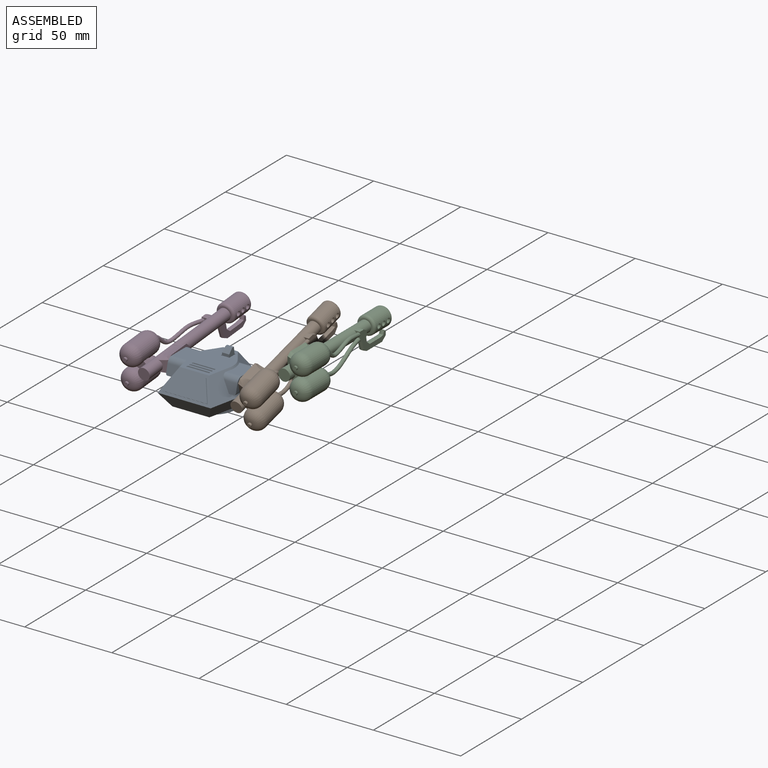
[diagram: assembled view]
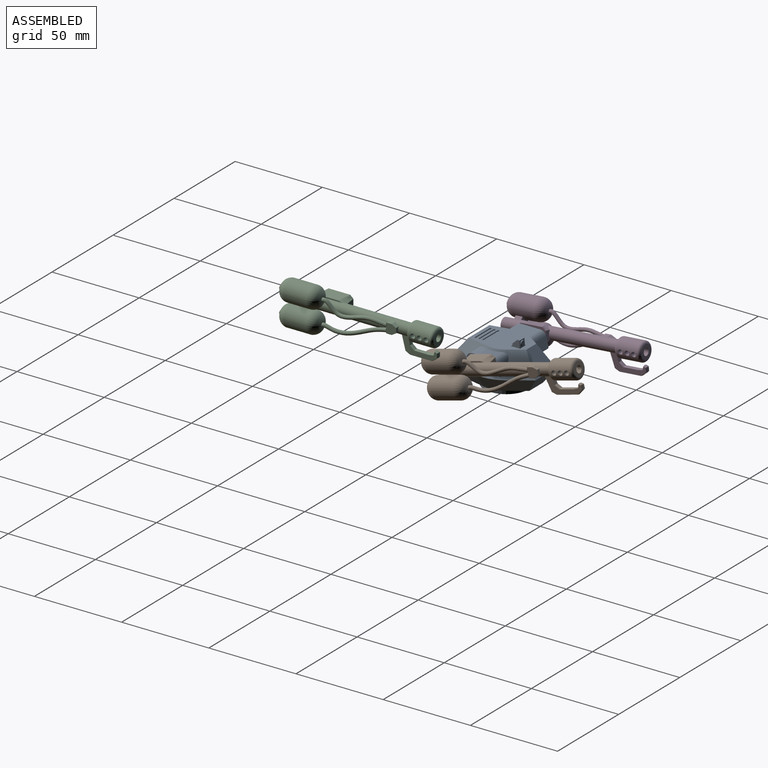
[diagram: assembled view, second angle]
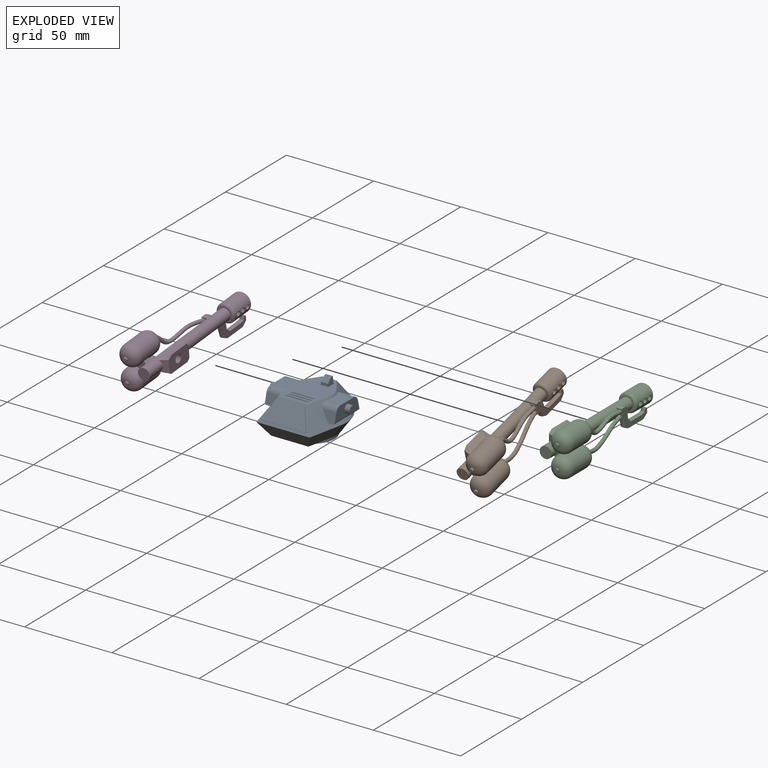
[diagram: exploded view]
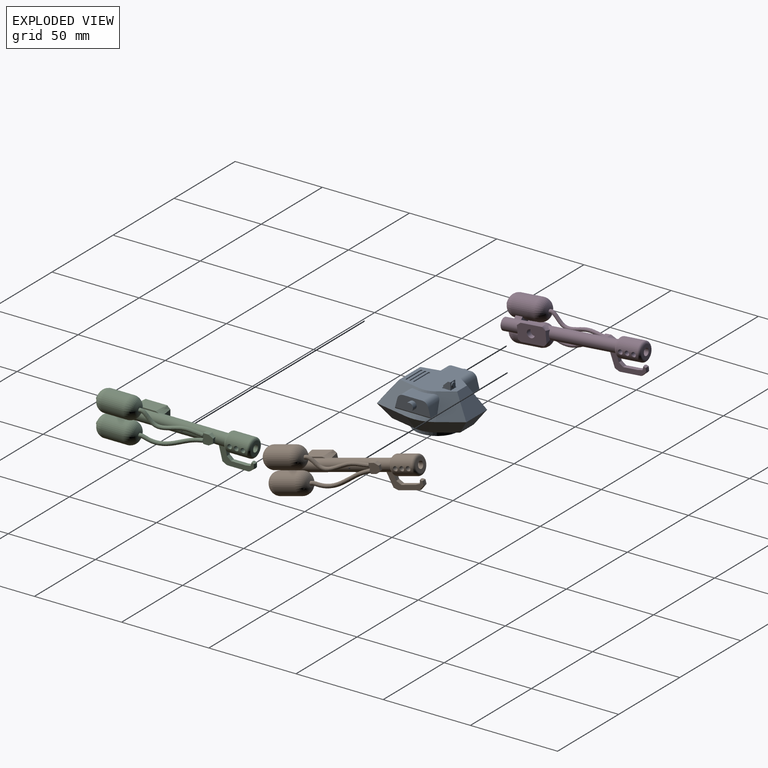
[diagram: exploded view, second angle]
ASSEMBLY  parts=3 mates=2
PART A: 76 faces, bbox 46x46.6x26.4 mm
  f0: plane 29.83x22.9mm, normal (0,0,1), area 490.3mm2, adj f4,f5,f7,f8,f9,f11,f21,f22
  f1: plane 4.95x4.87mm, normal (0,0,1), area 5.5mm2, adj f48,f49,f50,f51,f52,f53,f54,f55
  f2: cylinder r=12.75mm len=25.5mm, axis (0,0,-1), area 200.3mm2, adj f3,f20
  f3: plane 25.5x25.5mm, normal (0,0,-1), area 510.7mm2, adj f2
  f4: plane 16.46x12.5mm, normal (0.68,0.46,0.57), area 165.8mm2, adj f0,f10,f11,f12,f21,f27,f28,f32
  f5: plane 16.46x12.5mm, normal (-0.68,0.46,0.57), area 165.8mm2, adj f0,f6,f7,f14,f21,f33,f37,f38
  f6: cone r=19.85mm half-angle=35deg, axis (0,0,-1), area 47.5mm2, adj f5,f8,f15,f33
  f7: cone r=19.85mm half-angle=35deg, axis (0,0,-1), area 11.8mm2, adj f0,f5,f8,f34,f38
  f8: plane 21.56x12mm, normal (-0.8,-0.17,0.57), area 184.7mm2, adj f0,f6,f7,f16,f22,f33,f34,f35
  f9: plane 21.56x12mm, normal (0.8,-0.17,0.57), area 184.7mm2, adj f0,f10,f11,f18,f22,f27,f29,f30
  f10: cone r=19.85mm half-angle=35deg, axis (0,0,-1), area 47.5mm2, adj f4,f9,f19,f27
  f11: cone r=19.85mm half-angle=35deg, axis (0,0,-1), area 11.8mm2, adj f0,f4,f9,f28,f29
  f12: plane 14.91x11.03mm, normal (0.68,0.46,-0.57), area 124.8mm2, adj f4,f13,f19,f20
  f13: plane 17.03x8mm, normal (0,0.82,-0.57), area 137.5mm2, adj f12,f14,f20,f21
  f14: plane 14.91x11.03mm, normal (-0.68,0.46,-0.57), area 124.8mm2, adj f5,f13,f15,f20
  f15: cone r=14.25mm half-angle=35deg, axis (0,0,1), area 131.5mm2, adj f6,f14,f16,f20
  f16: plane 20.98x8.75mm, normal (-0.8,-0.17,-0.57), area 175.7mm2, adj f8,f15,f17,f20
  f17: plane 30.42x8mm, normal (0,-0.82,-0.57), area 252.8mm2, adj f16,f18,f20,f22
  f18: plane 20.98x8.75mm, normal (0.8,-0.17,-0.57), area 175.7mm2, adj f9,f17,f19,f20
  f19: cone r=14.25mm half-angle=35deg, axis (0,0,1), area 131.5mm2, adj f10,f12,f18,f20
  f20: plane 35.43x28.5mm, normal (0,0,-1), area 324.7mm2, adj f2,f12,f13,f14,f15,f16,f17,f18
  f21: plane 17.03x12mm, normal (0,0.82,0.57), area 184.6mm2, adj f0,f4,f5,f13
  f22: plane 30.42x12mm, normal (0,-0.82,0.57), area 109.4mm2, adj f0,f8,f9,f17,f43,f44,f45,f46
  f23: plane 4.5x4.5mm, normal (1,0,0), area 15.9mm2, adj f24
  f24: cylinder r=2.25mm len=4.5mm, axis (-1,0,0), area 42.4mm2, adj f23,f26
  f25: cylinder r=1mm len=20.73mm, axis (0,-1,0), area 32.3mm2, adj f26,f27,f31,f32
  f26: plane 20.2x7.37mm, normal (1,0,0), area 115.9mm2, adj f24,f25,f28,f29,f30,f31,f32
  f27: plane 20.73x4.25mm, normal (0,0,-1), area 38.7mm2, adj f4,f9,f10,f25,f31,f32
  f28: cylinder r=3.5mm len=9.84mm, axis (-1,0,0), area 44mm2, adj f4,f11,f26,f29,f32
  f29: plane 10.93x9.12mm, normal (0,0,1), area 89.8mm2, adj f9,f11,f26,f28,f30
  f30: cylinder r=3.5mm len=8.83mm, axis (-1,0,0), area 39mm2, adj f9,f26,f29,f31
  f31: plane 7.57x5.76mm, normal (0,-0.97,0.25), area 33.5mm2, adj f9,f25,f26,f27,f30
  f32: plane 9.1x5.76mm, normal (0,0.97,0.25), area 42.5mm2, adj f4,f25,f26,f27,f28
  f33: plane 20.73x4.25mm, normal (0,0,-1), area 38.7mm2, adj f5,f6,f8,f35,f37,f40
  f34: plane 10.93x9.12mm, normal (0,0,1), area 89.8mm2, adj f7,f8,f36,f38,f39
  f35: plane 7.57x5.76mm, normal (0,-0.97,0.25), area 33.5mm2, adj f8,f33,f36,f39,f40
  f36: cylinder r=3.5mm len=8.83mm, axis (-1,0,0), area 39mm2, adj f8,f34,f35,f39
  f37: plane 9.1x5.76mm, normal (0,0.97,0.25), area 42.5mm2, adj f5,f33,f38,f39,f40
  f38: cylinder r=3.5mm len=9.84mm, axis (-1,0,0), area 44mm2, adj f5,f7,f34,f37,f39
  f39: plane 20.2x7.37mm, normal (-1,0,0), area 115.9mm2, adj f34,f35,f36,f37,f38,f40,f41
  f40: cylinder r=1mm len=20.73mm, axis (0,-1,0), area 32.3mm2, adj f33,f35,f37,f39
  f41: cylinder r=2.25mm len=4.5mm, axis (1,0,0), area 42.4mm2, adj f39,f42
  f42: plane 4.5x4.5mm, normal (-1,0,0), area 15.9mm2, adj f41
  f43: plane 9.77x7.01mm, normal (0.91,0.24,0.35), area 5.1mm2, adj f22,f44,f46,f47
  f44: plane 14.89x0.33mm, normal (0,0.57,0.82), area 6mm2, adj f22,f43,f45,f47
  f45: plane 9.77x7.01mm, normal (-0.91,0.24,0.35), area 5.1mm2, adj f22,f44,f46,f47
  f46: plane 25.72x0.33mm, normal (0,-0.57,-0.82), area 10.3mm2, adj f22,f43,f45,f47
  f47: plane 25.72x9.54mm, normal (0,-0.82,0.57), area 236.5mm2, adj f43,f44,f45,f46
  f48: plane 4.95x0.4mm, normal (-1,0,0), area 2mm2, adj f0,f1,f49,f51
  f49: plane 4.87x0.4mm, normal (0,-1,0), area 1.9mm2, adj f0,f1,f48,f50
  f50: plane 4.95x0.4mm, normal (1,0,0), area 2mm2, adj f0,f1,f49,f51
  f51: plane 4.87x0.4mm, normal (0,1,0), area 1.9mm2, adj f0,f1,f48,f50
  f52: plane 4.35x4.25mm, normal (1,0,0.05), area 14.5mm2, adj f1,f53,f55,f56,f57
  f53: plane 4.27x4.25mm, normal (0,1,0.05), area 10.4mm2, adj f1,f52,f54,f56,f73
  f54: plane 4.35x4.25mm, normal (-1,0,0.05), area 14.5mm2, adj f1,f53,f55,f56,f57
  f55: plane 4.27x1.75mm, normal (0,-1,0.05), area 7.3mm2, adj f1,f52,f54,f57
  f56: plane 3.83x1.41mm, normal (0,0,1), area 5.4mm2, adj f52,f53,f54,f57
  f57: plane 4.09x2.63mm, normal (0,-0.69,0.73), area 14.4mm2, adj f52,f54,f55,f56
  f58: cone r=0.56mm half-angle=10deg, axis (0,0,1), area 0.8mm2, adj f0,f59,f61,f62
  f59: plane 12x0.5mm, normal (0,0.98,0.17), area 6.1mm2, adj f0,f58,f60,f62
  f60: cone r=0.56mm half-angle=10deg, axis (0,0,1), area 0.8mm2, adj f0,f59,f61,f62
  f61: plane 12x0.5mm, normal (0,-0.98,0.17), area 6.1mm2, adj f0,f58,f60,f62
  f62: plane 12.94x0.94mm, normal (0,0,1), area 12mm2, adj f58,f59,f60,f61
  f63: cone r=0.56mm half-angle=10deg, axis (0,0,1), area 0.8mm2, adj f0,f64,f66,f67
  f64: plane 12x0.5mm, normal (0,0.98,0.17), area 6.1mm2, adj f0,f63,f65,f67
  f65: cone r=0.56mm half-angle=10deg, axis (0,0,1), area 0.8mm2, adj f0,f64,f66,f67
  f66: plane 12x0.5mm, normal (0,-0.98,0.17), area 6.1mm2, adj f0,f63,f65,f67
  f67: plane 12.94x0.94mm, normal (0,0,1), area 12mm2, adj f63,f64,f65,f66
  f68: cone r=0.56mm half-angle=10deg, axis (0,0,1), area 0.8mm2, adj f0,f69,f71,f72
  f69: plane 12x0.5mm, normal (0,-0.98,0.17), area 6.1mm2, adj f0,f68,f70,f72
  f70: cone r=0.56mm half-angle=10deg, axis (0,0,1), area 0.8mm2, adj f0,f69,f71,f72
  f71: plane 12x0.5mm, normal (0,0.98,0.17), area 6.1mm2, adj f0,f68,f70,f72
  f72: plane 12.94x0.94mm, normal (0,0,1), area 12mm2, adj f68,f69,f70,f71
  f73: cylinder r=1.48mm len=2.97mm, axis (0,-1,-0.05), area 2.8mm2, adj f53,f75
  f74: plane 2.35x2.35mm, normal (0,1,0.05), area 4.4mm2, adj f75
  f75: torus R=1.18mm, axis (0,1,0.05), area 4.1mm2, adj f73,f74
PART B: 85 faces, bbox 21.2x85.4x26 mm
  f0: cylinder r=3.35mm len=66.5mm, axis (0,-1,0), area 1156.9mm2, adj f1,f10,f13,f16,f29,f30,f31,f32
  f1: plane 3.18x1.82mm, normal (0,-1,0), area 4.2mm2, adj f0,f2,f29,f83
  f2: plane 5.7x5.59mm, normal (1,0,0), area 28.2mm2, adj f1,f29,f30,f31,f32,f33,f34,f81
  f3: cylinder r=1.08mm len=2.17mm, axis (0,1,0), area 7.8mm2, adj f4,f8
  f4: plane 2.17x2.17mm, normal (0,-1,0), area 3.7mm2, adj f3
  f5: cylinder r=1.08mm len=2.17mm, axis (0,1,0), area 8.2mm2, adj f6,f84
  f6: torus R=1.08mm, axis (0,1,0), area 210.5mm2, adj f5,f7
  f7: cylinder r=6.08mm len=12.99mm, axis (0,1,0), area 475.8mm2, adj f6,f8,f9,f10,f55,f56
  f8: torus R=1.08mm, axis (0,1,0), area 210.5mm2, adj f3,f7
  f9: plane 4x1.14mm, normal (1,0,0), area 4.5mm2, adj f7,f52,f55,f56
  f10: plane 4x1.28mm, normal (-0.67,0,0.75), area 6.8mm2, adj f0,f7,f55,f56
  f11: cylinder r=1.99mm len=25mm, axis (0,1,0), area 247.2mm2, adj f12,f15,f19,f20,f21,f22,f23,f24
  f12: plane 3.43x0.99mm, normal (0,1,0), area 2.4mm2, adj f11,f25
  f13: plane 6.7x6.7mm, normal (0,-1,0), area 35.3mm2, adj f0
  f14: cylinder r=5.31mm len=12mm, axis (0,-1,0), area 367.7mm2, adj f17,f18,f19,f20,f21,f22,f23,f24
  f15: plane 7.63x7.63mm, normal (0,1,0), area 33.3mm2, adj f11,f18
  f16: plane 7.63x7.63mm, normal (0,-1,0), area 10.4mm2, adj f0,f17
  f17: torus R=3.81mm, axis (0,1,0), area 70.6mm2, adj f14,f16
  f18: torus R=3.81mm, axis (0,1,0), area 70.6mm2, adj f14,f15
  f19: cylinder r=1.31mm len=3.69mm, axis (1,0,0), area 30.5mm2, adj f11,f14
  f20: cylinder r=1.31mm len=3.69mm, axis (1,0,0), area 30.5mm2, adj f11,f14
  f21: cylinder r=1.31mm len=3.69mm, axis (1,0,0), area 30.5mm2, adj f11,f14
  f22: cylinder r=1.31mm len=3.69mm, axis (1,0,0), area 30.5mm2, adj f11,f14
  f23: cylinder r=1.31mm len=3.69mm, axis (1,0,0), area 30.5mm2, adj f11,f14
  f24: cylinder r=1.31mm len=3.69mm, axis (1,0,0), area 30.5mm2, adj f11,f14
  f25: plane 4.08x3.43mm, normal (-1,0,0), area 13.8mm2, adj f11,f12,f26,f27,f28
  f26: plane 2.81x1.45mm, normal (0,0.47,0.88), area 1.9mm2, adj f11,f25,f27
  f27: plane 2.99x2.73mm, normal (0,1,0), area 7.7mm2, adj f11,f25,f26,f28
  f28: plane 2.53x1.2mm, normal (0,0.52,-0.86), area 2.7mm2, adj f11,f25,f27
  f29: plane 3.18x3.18mm, normal (0,0,1), area 10.1mm2, adj f0,f1,f2,f34
  f30: plane 3.6x3.11mm, normal (0,-1,0), area 4.6mm2, adj f0,f2,f31,f81,f82,f84
  f31: plane 3.21x3.11mm, normal (0,0,-1), area 10mm2, adj f0,f2,f30,f32
  f32: plane 3.11x2.5mm, normal (0,0.52,-0.86), area 6.9mm2, adj f0,f2,f31,f33
  f33: plane 2.73x1.98mm, normal (0,1,0), area 4.8mm2, adj f0,f2,f32,f34
  f34: plane 3.18x2.53mm, normal (0,0.47,0.88), area 7.1mm2, adj f0,f2,f29,f33
  f35: plane 14.1x0.71mm, normal (1,0,0), area 8.3mm2, adj f0,f38,f44,f45
  f36: plane 15.05x0.35mm, normal (1,0,0), area 5mm2, adj f0,f40,f41,f42
  f37: plane 16.46x9.81mm, normal (-1,0,0), area 139.8mm2, adj f38,f39,f40,f41,f42,f43,f44,f45
  f38: bspline ~6.27x4.09mm, area 19.5mm2, adj f0,f35,f37,f39,f45
  f39: bspline ~6.82x6.27mm, area 23mm2, adj f0,f37,f38,f40
  f40: bspline ~6.27x2.98mm, area 12.9mm2, adj f0,f36,f37,f39,f41
  f41: bspline ~14.92x6.27mm, area 85.1mm2, adj f36,f37,f40,f42
  f42: bspline ~6.27x3.03mm, area 10.2mm2, adj f0,f36,f37,f41,f43
  f43: bspline ~7.18x6.27mm, area 25.3mm2, adj f0,f37,f42,f44
  f44: bspline ~6.27x4.3mm, area 22.8mm2, adj f0,f35,f37,f43,f45
  f45: bspline ~12.46x6.27mm, area 68.4mm2, adj f35,f37,f38,f44
  f46: cylinder r=2.3mm len=4.6mm, axis (-1,0,0), area 43.4mm2, adj f37,f47
  f47: plane 4.6x4.6mm, normal (-1,0,0), area 16.6mm2, adj f46
  f48: cylinder r=1.08mm len=2.17mm, axis (0,1,0), area 7.8mm2, adj f49,f53
  f49: plane 2.17x2.17mm, normal (0,-1,0), area 3.7mm2, adj f48
  f50: cylinder r=1.08mm len=2.17mm, axis (0,1,0), area 8.2mm2, adj f51,f82
  f51: torus R=1.08mm, axis (0,1,0), area 210.5mm2, adj f50,f52
  f52: cylinder r=6.08mm len=12.99mm, axis (0,1,0), area 472.3mm2, adj f9,f51,f53,f54,f55,f56
  f53: torus R=1.08mm, axis (0,1,0), area 210.5mm2, adj f48,f52
  f54: plane 4x1.1mm, normal (-0.77,0,-0.64), area 5.7mm2, adj f0,f52,f55,f56
  f55: plane 7.95x5.26mm, normal (0,-1,0), area 15.3mm2, adj f0,f7,f9,f10,f52,f54
  f56: plane 7.95x5.26mm, normal (0,1,0), area 15.3mm2, adj f0,f7,f9,f10,f52,f54
  f57: plane 20.1x9.18mm, normal (1,0,0), area 73.7mm2, adj f0,f58,f59,f60,f61,f62,f63,f64
  f58: plane 8.33x1.25mm, normal (0.17,0,0.98), area 10.5mm2, adj f57,f59,f68,f79
  f59: plane 2.86x1.25mm, normal (0.17,-0.15,0.97), area 3.6mm2, adj f57,f58,f60,f78
  f60: plane 2.27x1.25mm, normal (0.17,-0.94,0.28), area 2.7mm2, adj f57,f59,f61,f77
  f61: plane 1.71x1.25mm, normal (0.17,0.36,0.92), area 2.1mm2, adj f57,f60,f62,f76
  f62: plane 2.63x1.25mm, normal (0.17,0.98,0), area 3.2mm2, adj f57,f61,f63,f75
  f63: plane 3.24x2.46mm, normal (0.17,0.59,-0.79), area 4.9mm2, adj f57,f62,f64,f74
  f64: plane 12.55x1.25mm, normal (0.17,0,-0.98), area 15.8mm2, adj f57,f63,f65,f73
  f65: plane 2.78x1.56mm, normal (0.17,-0.45,-0.88), area 3.8mm2, adj f57,f64,f66,f72
  f66: plane 8.03x2.27mm, normal (0.17,-0.95,-0.25), area 10.2mm2, adj f0,f57,f65,f71
  f67: plane 4.44x1.27mm, normal (0.17,0.97,0.17), area 5.4mm2, adj f0,f57,f68,f70
  f68: plane 2.48x2.13mm, normal (0.17,0.63,0.75), area 3.9mm2, adj f57,f58,f67,f69
  f69: plane 2.48x2.13mm, normal (-0.17,0.63,0.75), area 3.9mm2, adj f68,f70,f79,f80
  f70: plane 4.44x1.27mm, normal (-0.17,0.97,0.17), area 5.4mm2, adj f0,f67,f69,f80
  f71: plane 8.03x2.27mm, normal (-0.17,-0.95,-0.25), area 10.2mm2, adj f0,f66,f72,f80
  f72: plane 2.78x1.56mm, normal (-0.17,-0.45,-0.88), area 3.8mm2, adj f65,f71,f73,f80
  f73: plane 12.55x1.25mm, normal (-0.17,0,-0.98), area 15.8mm2, adj f64,f72,f74,f80
  f74: plane 3.24x2.46mm, normal (-0.17,0.59,-0.79), area 4.9mm2, adj f63,f73,f75,f80
  f75: plane 2.63x1.25mm, normal (-0.17,0.98,0), area 3.2mm2, adj f62,f74,f76,f80
  f76: plane 1.71x1.25mm, normal (-0.17,0.36,0.92), area 2.1mm2, adj f61,f75,f77,f80
  f77: plane 2.27x1.25mm, normal (-0.17,-0.94,0.28), area 2.7mm2, adj f60,f76,f78,f80
  f78: plane 2.86x1.25mm, normal (-0.17,-0.15,0.97), area 3.6mm2, adj f59,f77,f79,f80
  f79: plane 8.33x1.25mm, normal (-0.17,0,0.98), area 10.5mm2, adj f58,f69,f78,f80
  f80: plane 20.1x9.18mm, normal (-1,0,0), area 73.7mm2, adj f0,f69,f70,f71,f72,f73,f74,f75
  f81: plane 2.16x1.79mm, normal (0,0.97,0.23), area 1.9mm2, adj f2,f30,f82
  f82: bspline ~33.15x9mm, area 231.9mm2, adj f2,f30,f50,f81
  f83: plane 2.17x1.84mm, normal (0,1,0.09), area 2.5mm2, adj f0,f1,f2,f84
  f84: bspline ~32.96x8.6mm, area 239mm2, adj f0,f2,f5,f30,f83
PART C: 85 faces, bbox 21.2x85.4x26 mm
  f0: cylinder r=3.35mm len=66.5mm, axis (0,-1,0), area 1156.9mm2, adj f1,f10,f13,f16,f29,f30,f31,f32
  f1: plane 3.18x1.82mm, normal (0,-1,0), area 4.2mm2, adj f0,f2,f29,f83
  f2: plane 5.7x5.59mm, normal (-1,0,0), area 28.2mm2, adj f1,f29,f30,f31,f32,f33,f34,f81
  f3: cylinder r=1.08mm len=2.17mm, axis (0,1,0), area 7.8mm2, adj f4,f8
  f4: plane 2.17x2.17mm, normal (0,-1,0), area 3.7mm2, adj f3
  f5: cylinder r=1.08mm len=2.17mm, axis (0,1,0), area 8.2mm2, adj f6,f84
  f6: torus R=1.08mm, axis (0,1,0), area 210.5mm2, adj f5,f7
  f7: cylinder r=6.08mm len=12.99mm, axis (0,1,0), area 475.8mm2, adj f6,f8,f9,f10,f55,f56
  f8: torus R=1.08mm, axis (0,1,0), area 210.5mm2, adj f3,f7
  f9: plane 4x1.14mm, normal (-1,0,0), area 4.5mm2, adj f7,f52,f55,f56
  f10: plane 4x1.28mm, normal (0.67,0,0.75), area 6.8mm2, adj f0,f7,f55,f56
  f11: cylinder r=1.99mm len=25mm, axis (0,1,0), area 247.2mm2, adj f12,f15,f19,f20,f21,f22,f23,f24
  f12: plane 3.43x0.99mm, normal (0,1,0), area 2.4mm2, adj f11,f25
  f13: plane 6.7x6.7mm, normal (0,-1,0), area 35.3mm2, adj f0
  f14: cylinder r=5.31mm len=12mm, axis (0,-1,0), area 367.7mm2, adj f17,f18,f19,f20,f21,f22,f23,f24
  f15: plane 7.63x7.63mm, normal (0,1,0), area 33.3mm2, adj f11,f18
  f16: plane 7.63x7.63mm, normal (0,-1,0), area 10.4mm2, adj f0,f17
  f17: torus R=3.81mm, axis (0,1,0), area 70.6mm2, adj f14,f16
  f18: torus R=3.81mm, axis (0,1,0), area 70.6mm2, adj f14,f15
  f19: cylinder r=1.31mm len=3.69mm, axis (-1,0,0), area 30.5mm2, adj f11,f14
  f20: cylinder r=1.31mm len=3.69mm, axis (-1,0,0), area 30.5mm2, adj f11,f14
  f21: cylinder r=1.31mm len=3.69mm, axis (-1,0,0), area 30.5mm2, adj f11,f14
  f22: cylinder r=1.31mm len=3.69mm, axis (-1,0,0), area 30.5mm2, adj f11,f14
  f23: cylinder r=1.31mm len=3.69mm, axis (-1,0,0), area 30.5mm2, adj f11,f14
  f24: cylinder r=1.31mm len=3.69mm, axis (-1,0,0), area 30.5mm2, adj f11,f14
  f25: plane 4.08x3.43mm, normal (1,0,0), area 13.8mm2, adj f11,f12,f26,f27,f28
  f26: plane 2.81x1.45mm, normal (0,0.47,0.88), area 1.9mm2, adj f11,f25,f27
  f27: plane 2.99x2.73mm, normal (0,1,0), area 7.7mm2, adj f11,f25,f26,f28
  f28: plane 2.53x1.2mm, normal (0,0.52,-0.86), area 2.7mm2, adj f11,f25,f27
  f29: plane 3.18x3.18mm, normal (0,0,1), area 10.1mm2, adj f0,f1,f2,f34
  f30: plane 3.6x3.11mm, normal (0,-1,0), area 4.6mm2, adj f0,f2,f31,f81,f82,f84
  f31: plane 3.21x3.11mm, normal (0,0,-1), area 10mm2, adj f0,f2,f30,f32
  f32: plane 3.11x2.5mm, normal (0,0.52,-0.86), area 6.9mm2, adj f0,f2,f31,f33
  f33: plane 2.73x1.98mm, normal (0,1,0), area 4.8mm2, adj f0,f2,f32,f34
  f34: plane 3.18x2.53mm, normal (0,0.47,0.88), area 7.1mm2, adj f0,f2,f29,f33
  f35: plane 14.1x0.71mm, normal (-1,0,0), area 8.3mm2, adj f0,f38,f44,f45
  f36: plane 15.05x0.35mm, normal (-1,0,0), area 5mm2, adj f0,f40,f41,f42
  f37: plane 16.46x9.81mm, normal (1,0,0), area 139.8mm2, adj f38,f39,f40,f41,f42,f43,f44,f45
  f38: bspline ~6.27x4.09mm, area 19.5mm2, adj f0,f35,f37,f39,f45
  f39: bspline ~6.82x6.27mm, area 23mm2, adj f0,f37,f38,f40
  f40: bspline ~6.27x2.98mm, area 12.9mm2, adj f0,f36,f37,f39,f41
  f41: bspline ~14.92x6.27mm, area 85.1mm2, adj f36,f37,f40,f42
  f42: bspline ~6.27x3.03mm, area 10.2mm2, adj f0,f36,f37,f41,f43
  f43: bspline ~7.18x6.27mm, area 25.3mm2, adj f0,f37,f42,f44
  f44: bspline ~6.27x4.3mm, area 22.8mm2, adj f0,f35,f37,f43,f45
  f45: bspline ~12.46x6.27mm, area 68.4mm2, adj f35,f37,f38,f44
  f46: cylinder r=2.3mm len=4.6mm, axis (1,0,0), area 43.4mm2, adj f37,f47
  f47: plane 4.6x4.6mm, normal (1,0,0), area 16.6mm2, adj f46
  f48: cylinder r=1.08mm len=2.17mm, axis (0,1,0), area 7.8mm2, adj f49,f53
  f49: plane 2.17x2.17mm, normal (0,-1,0), area 3.7mm2, adj f48
  f50: cylinder r=1.08mm len=2.17mm, axis (0,1,0), area 8.2mm2, adj f51,f82
  f51: torus R=1.08mm, axis (0,1,0), area 210.5mm2, adj f50,f52
  f52: cylinder r=6.08mm len=12.99mm, axis (0,1,0), area 472.3mm2, adj f9,f51,f53,f54,f55,f56
  f53: torus R=1.08mm, axis (0,1,0), area 210.5mm2, adj f48,f52
  f54: plane 4x1.1mm, normal (0.77,0,-0.64), area 5.7mm2, adj f0,f52,f55,f56
  f55: plane 7.95x5.26mm, normal (0,-1,0), area 15.3mm2, adj f0,f7,f9,f10,f52,f54
  f56: plane 7.95x5.26mm, normal (0,1,0), area 15.3mm2, adj f0,f7,f9,f10,f52,f54
  f57: plane 20.1x9.18mm, normal (-1,0,0), area 73.7mm2, adj f0,f58,f59,f60,f61,f62,f63,f64
  f58: plane 8.33x1.25mm, normal (-0.17,0,0.98), area 10.5mm2, adj f57,f59,f68,f79
  f59: plane 2.86x1.25mm, normal (-0.17,-0.15,0.97), area 3.6mm2, adj f57,f58,f60,f78
  f60: plane 2.27x1.25mm, normal (-0.17,-0.94,0.28), area 2.7mm2, adj f57,f59,f61,f77
  f61: plane 1.71x1.25mm, normal (-0.17,0.36,0.92), area 2.1mm2, adj f57,f60,f62,f76
  f62: plane 2.63x1.25mm, normal (-0.17,0.98,0), area 3.2mm2, adj f57,f61,f63,f75
  f63: plane 3.24x2.46mm, normal (-0.17,0.59,-0.79), area 4.9mm2, adj f57,f62,f64,f74
  f64: plane 12.55x1.25mm, normal (-0.17,0,-0.98), area 15.8mm2, adj f57,f63,f65,f73
  f65: plane 2.78x1.56mm, normal (-0.17,-0.45,-0.88), area 3.8mm2, adj f57,f64,f66,f72
  f66: plane 8.03x2.27mm, normal (-0.17,-0.95,-0.25), area 10.2mm2, adj f0,f57,f65,f71
  f67: plane 4.44x1.27mm, normal (-0.17,0.97,0.17), area 5.4mm2, adj f0,f57,f68,f70
  f68: plane 2.48x2.13mm, normal (-0.17,0.63,0.75), area 3.9mm2, adj f57,f58,f67,f69
  f69: plane 2.48x2.13mm, normal (0.17,0.63,0.75), area 3.9mm2, adj f68,f70,f79,f80
  f70: plane 4.44x1.27mm, normal (0.17,0.97,0.17), area 5.4mm2, adj f0,f67,f69,f80
  f71: plane 8.03x2.27mm, normal (0.17,-0.95,-0.25), area 10.2mm2, adj f0,f66,f72,f80
  f72: plane 2.78x1.56mm, normal (0.17,-0.45,-0.88), area 3.8mm2, adj f65,f71,f73,f80
  f73: plane 12.55x1.25mm, normal (0.17,0,-0.98), area 15.8mm2, adj f64,f72,f74,f80
  f74: plane 3.24x2.46mm, normal (0.17,0.59,-0.79), area 4.9mm2, adj f63,f73,f75,f80
  f75: plane 2.63x1.25mm, normal (0.17,0.98,0), area 3.2mm2, adj f62,f74,f76,f80
  f76: plane 1.71x1.25mm, normal (0.17,0.36,0.92), area 2.1mm2, adj f61,f75,f77,f80
  f77: plane 2.27x1.25mm, normal (0.17,-0.94,0.28), area 2.7mm2, adj f60,f76,f78,f80
  f78: plane 2.86x1.25mm, normal (0.17,-0.15,0.97), area 3.6mm2, adj f59,f77,f79,f80
  f79: plane 8.33x1.25mm, normal (0.17,0,0.98), area 10.5mm2, adj f58,f69,f78,f80
  f80: plane 20.1x9.18mm, normal (1,0,0), area 73.7mm2, adj f0,f69,f70,f71,f72,f73,f74,f75
  f81: plane 2.16x1.79mm, normal (0,0.97,0.23), area 1.9mm2, adj f2,f30,f82
  f82: bspline ~33.15x9mm, area 231.9mm2, adj f2,f30,f50,f81
  f83: plane 2.17x1.84mm, normal (0,1,0.09), area 2.5mm2, adj f0,f1,f2,f84
  f84: bspline ~32.96x8.6mm, area 239mm2, adj f0,f2,f5,f30,f83
PLACE A t=(-16.28,-0.81,0.7)mm fixed
PLACE B rot(axis=(1,0,0),15deg) t=(18.36,-11.61,8.53)mm
PLACE C rot(axis=(1,0,0),5deg) t=(15.82,-13.17,10.56)mm
MATE revolute C.f46 <-> A.f24  axis (1,0,0) through (-39.28,-0.81,18.49)mm
MATE revolute B.f46 <-> A.f24  axis (-1,0,0) through (6.72,-0.81,18.49)mm
